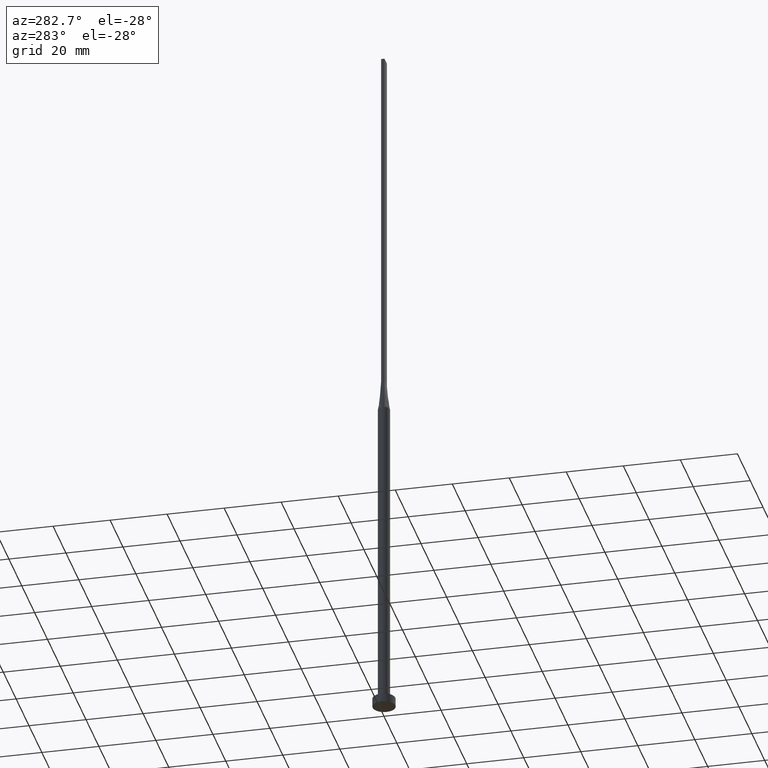
[diagram: clean part render]
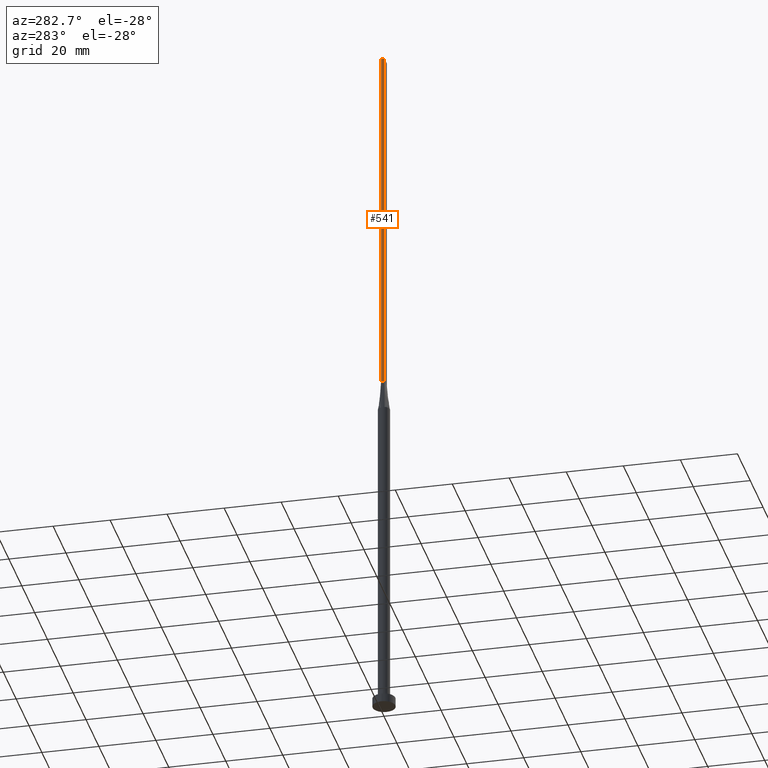
[diagram: same view with one face highlighted and labeled with its STEP entity id]
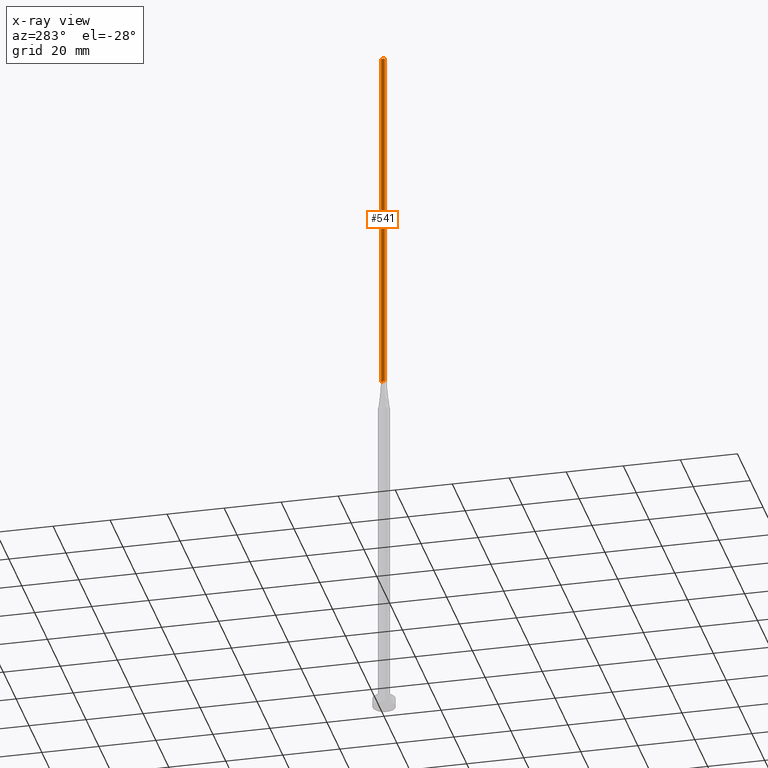
[diagram: x-ray of the same camera — body ghosted, the highlighted face saturated]
A machine part, auxiliary view. The second image highlights one B-rep face of the part: STEP entity #541.
The next image is the same camera in x-ray: the body ghosted, the highlighted face saturated — about 0% of this face is hidden behind the body in this view.
In plain terms, the highlighted planar face has unit normal (1, -0, 0).
Its self-contained STEP definition (entity closure, byte-faithful):
#3 = DIRECTION ( 'NONE',  ( 1.807003620809174632E-16, 1.000000000000000000, 0.000000000000000000 ) ) ;
#43 = ORIENTED_EDGE ( 'NONE', *, *, #85, .T. ) ;
#49 = CARTESIAN_POINT ( 'NONE',  ( -1.899999999999999689, 0.6000000000000001998, 250.0000000000000000 ) ) ;
#52 = DIRECTION ( 'NONE',  ( -0.000000000000000000, -0.000000000000000000, -1.000000000000000000 ) ) ;
#69 = CARTESIAN_POINT ( 'NONE',  ( -1.899999999999999911, -0.5999999999999995337, 250.0000000000000000 ) ) ;
#74 = AXIS2_PLACEMENT_3D ( 'NONE', #347, #535, #3 ) ;
#85 = EDGE_CURVE ( 'NONE', #190, #226, #444, .T. ) ;
#127 = ORIENTED_EDGE ( 'NONE', *, *, #376, .T. ) ;
#168 = CARTESIAN_POINT ( 'NONE',  ( -1.899999999999999689, 0.6000000000000001998, 125.0000000000000000 ) ) ;
#178 = VECTOR ( 'NONE', #52, 1000.000000000000000 ) ;
#190 = VERTEX_POINT ( 'NONE', #316 ) ;
#212 = CARTESIAN_POINT ( 'NONE',  ( -1.899999999999999911, -0.5999999999999995337, 125.0000000000000000 ) ) ;
#217 = FACE_OUTER_BOUND ( 'NONE', #412, .T. ) ;
#222 = CARTESIAN_POINT ( 'NONE',  ( -1.899999999999999689, 0.6000000000000001998, 125.0000000000000000 ) ) ;
#226 = VERTEX_POINT ( 'NONE', #222 ) ;
#238 = DIRECTION ( 'NONE',  ( -0.000000000000000000, -0.000000000000000000, -1.000000000000000000 ) ) ;
#252 = EDGE_CURVE ( 'NONE', #190, #276, #452, .T. ) ;
#262 = VECTOR ( 'NONE', #264, 1000.000000000000000 ) ;
#264 = DIRECTION ( 'NONE',  ( -1.807003620809174632E-16, -1.000000000000000000, 0.000000000000000000 ) ) ;
#276 = VERTEX_POINT ( 'NONE', #529 ) ;
#307 = LINE ( 'NONE', #168, #262 ) ;
#311 = ORIENTED_EDGE ( 'NONE', *, *, #252, .F. ) ;
#316 = CARTESIAN_POINT ( 'NONE',  ( -1.899999999999999689, 0.6000000000000001998, 250.0000000000000000 ) ) ;
#323 = VERTEX_POINT ( 'NONE', #212 ) ;
#347 = CARTESIAN_POINT ( 'NONE',  ( -1.899999999999999689, 0.6000000000000001998, 250.0000000000000000 ) ) ;
#370 = ORIENTED_EDGE ( 'NONE', *, *, #499, .F. ) ;
#376 = EDGE_CURVE ( 'NONE', #226, #323, #307, .T. ) ;
#378 = DIRECTION ( 'NONE',  ( -1.807003620809174632E-16, -1.000000000000000000, 0.000000000000000000 ) ) ;
#382 = CARTESIAN_POINT ( 'NONE',  ( -1.899999999999999689, 0.6000000000000001998, 250.0000000000000000 ) ) ;
#394 = PLANE ( 'NONE',  #74 ) ;
#412 = EDGE_LOOP ( 'NONE', ( #127, #370, #311, #43 ) ) ;
#440 = VECTOR ( 'NONE', #238, 1000.000000000000000 ) ;
#444 = LINE ( 'NONE', #49, #178 ) ;
#452 = LINE ( 'NONE', #382, #555 ) ;
#465 = LINE ( 'NONE', #69, #440 ) ;
#499 = EDGE_CURVE ( 'NONE', #276, #323, #465, .T. ) ;
#529 = CARTESIAN_POINT ( 'NONE',  ( -1.899999999999999911, -0.5999999999999995337, 250.0000000000000000 ) ) ;
#535 = DIRECTION ( 'NONE',  ( 1.000000000000000000, -1.807003620809174632E-16, 0.000000000000000000 ) ) ;
#541 = ADVANCED_FACE ( 'NONE', ( #217 ), #394, .F. ) ;
#555 = VECTOR ( 'NONE', #378, 1000.000000000000000 ) ;